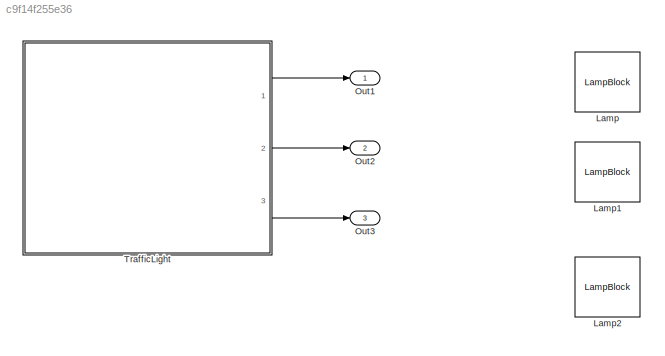
MODEL slx_c9f14f255e36
KIND model
CONFIG AbsTol = auto
CONFIG EnableMultiTasking = off
CONFIG FixedStep = auto
CONFIG MaxStep = auto
CONFIG MinStep = auto
CONFIG RelTol = 1e-3
CONFIG SampleTimeConstraint = Unconstrained
CONFIG Solver = VariableStepAuto
CONFIG SolverName = VariableStepAuto
CONFIG StartTime = 0.0
CONFIG StopTime = 10.0
BLOCK [LampBlock] Lamp
  WebBlockId = 2
BLOCK [LampBlock] Lamp1
  WebBlockId = 3
BLOCK [LampBlock] Lamp2
  WebBlockId = 4
BLOCK [Outport] Out1
  IconDisplay = Port number
  OutDataTypeStr = uint8
BLOCK [Outport] Out2
  IconDisplay = Port number
  OutDataTypeStr = uint8
  Port = 2
BLOCK [Outport] Out3
  IconDisplay = Port number
  OutDataTypeStr = uint8
  Port = 3
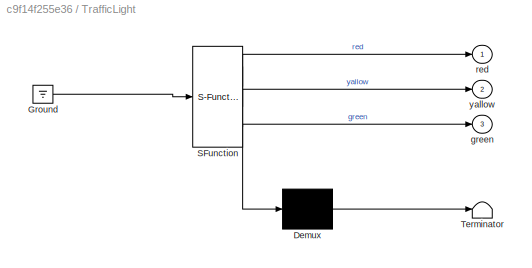
BLOCK [SubSystem] TrafficLight
  ErrorFcn = Stateflow.Translate.translate
  PermitHierarchicalResolution = ExplicitOnly
  Ports = [0, 3]
  RequestExecContextInheritance = off
  SFBlockType = Chart
  TreatAsAtomicUnit = on
BLOCK [Demux] TrafficLight/ Demux 
  Outputs = 1
  Ports = [1, 1]
BLOCK [Ground] TrafficLight/ Ground 
BLOCK [S-Function] TrafficLight/ SFunction 
  EnableBusSupport = on
  FunctionName = sf_sfun
  PortCounts = [1 4]
  Ports = [1, 4]
  SFcnIsStateOwnerBlock = off
  SFunctionDeploymentMode = off
  Tag = Stateflow S-Function TarfficLightChart 3
BLOCK [Terminator] TrafficLight/ Terminator 
BLOCK [Outport] TrafficLight/green
  IconDisplay = Port number
  Port = 3
BLOCK [Outport] TrafficLight/red
  IconDisplay = Port number
BLOCK [Outport] TrafficLight/yallow
  IconDisplay = Port number
  Port = 2
LINE TrafficLight:1 -> Out1:1
LINE TrafficLight:2 -> Out2:1
LINE TrafficLight:3 -> Out3:1
CHART TrafficLight states=3 transitions=4
  STATE_LABEL 'Green\nen:\n red = 0;\n green = 1;\n yallow = 0;\ndu:\n green = 1;\nex:\n'
  STATE_LABEL 'Red\nen:\n red = 1;\n green = 0;\n yallow = 0;\ndu:\n red = 1;\nex:'
  STATE_LABEL 'Yallow\nen:\n red = 0;\n green = 0;\n yallow = 1;\ndu:\n yallow = 1;\nex:'
